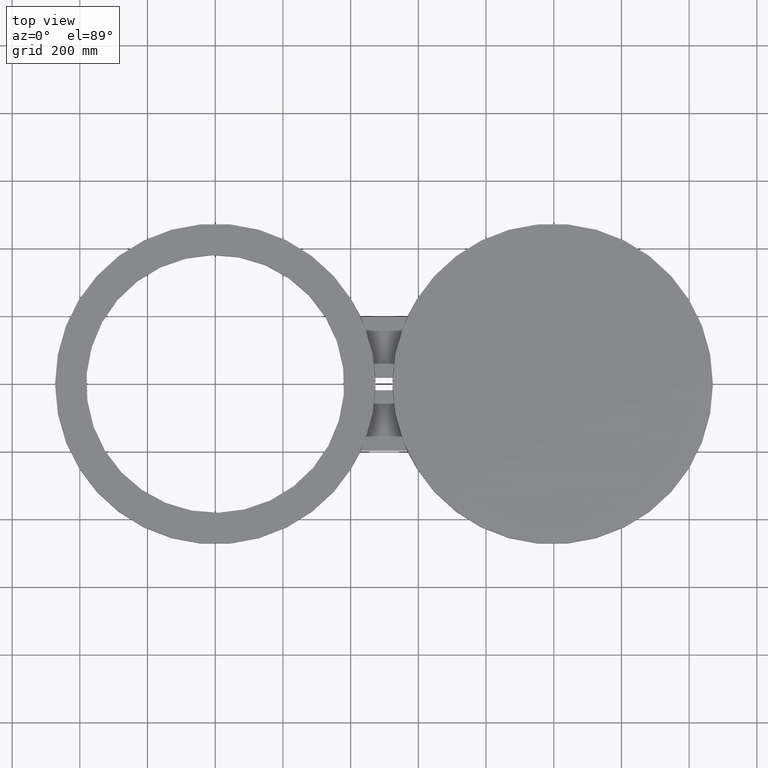
[diagram: clean part render]
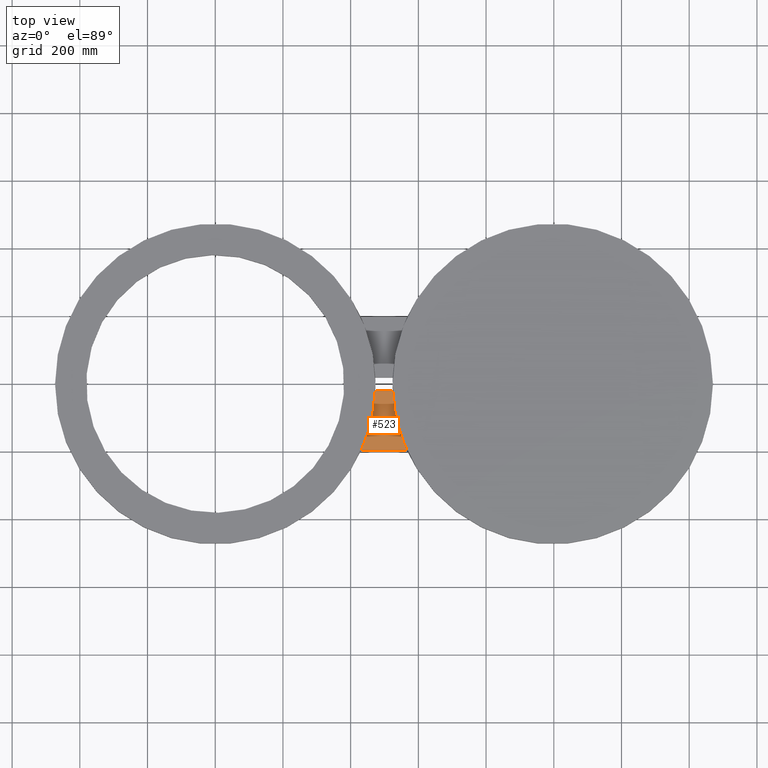
[diagram: same view with one face highlighted and labeled with its STEP entity id]
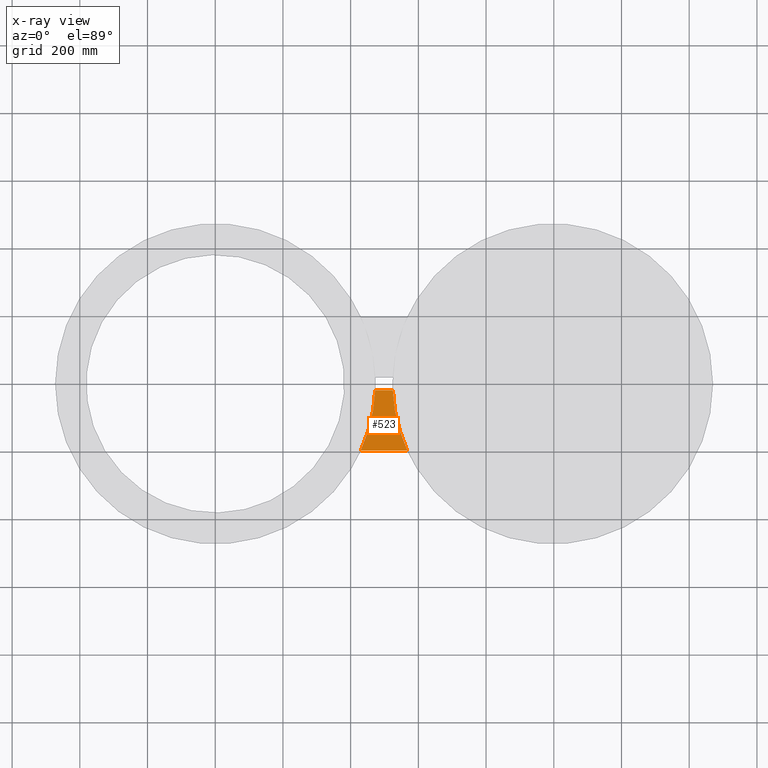
[diagram: x-ray of the same camera — body ghosted, the highlighted face saturated]
A machine part, top view. The second image highlights one B-rep face of the part: STEP entity #523.
The next image is the same camera in x-ray: the body ghosted, the highlighted face saturated — about 0% of this face is hidden behind the body in this view.
In plain terms, the highlighted planar face has unit normal (0, 0, 1).
Its self-contained STEP definition (entity closure, byte-faithful):
#76=AXIS2_PLACEMENT_3D('Circle Axis2P3D',#74,#75,$) ;
#173=AXIS2_PLACEMENT_3D('Circle Axis2P3D',#171,#172,$) ;
#340=AXIS2_PLACEMENT_3D('Plane Axis2P3D',#337,#338,#339) ;
#507=AXIS2_PLACEMENT_3D('Circle Axis2P3D',#505,#506,$) ;
#516=AXIS2_PLACEMENT_3D('Circle Axis2P3D',#514,#515,$) ;
#74=CARTESIAN_POINT('Axis2P3D Location',(39.2500000002,4.80673868667E-015,0.984375000004)) ;
#78=CARTESIAN_POINT('Vertex',(20.6401067978,-0.750000000003,0.984375000004)) ;
#80=CARTESIAN_POINT('Vertex',(22.3139991439,-7.75000000003,0.984375000004)) ;
#154=CARTESIAN_POINT('Vertex',(18.6098932023,-0.750000000003,0.984375000004)) ;
#168=CARTESIAN_POINT('Vertex',(16.9360008562,-7.75000000003,0.984375000004)) ;
#171=CARTESIAN_POINT('Axis2P3D Location',(0.,0.,0.984375000004)) ;
#337=CARTESIAN_POINT('Axis2P3D Location',(0.,0.,0.984375000004)) ;
#458=CARTESIAN_POINT('Line Origine',(19.6250000001,-7.75000000003,0.984375000004)) ;
#487=CARTESIAN_POINT('Line Origine',(19.6250000001,-0.750000000003,0.984375000004)) ;
#505=CARTESIAN_POINT('Axis2P3D Location',(19.6250000001,-4.25000000002,0.984375000004)) ;
#509=CARTESIAN_POINT('Vertex',(19.6250000001,-3.93750000314,0.984375000004)) ;
#511=CARTESIAN_POINT('Vertex',(19.6250000001,-4.56249999689,0.984375000004)) ;
#514=CARTESIAN_POINT('Axis2P3D Location',(19.6250000001,-4.25000000002,0.984375000004)) ;
#75=DIRECTION('Axis2P3D Direction',(0.,0.,0.0393700787402)) ;
#172=DIRECTION('Axis2P3D Direction',(0.,0.,0.0393700787402)) ;
#338=DIRECTION('Axis2P3D Direction',(0.,0.,0.0393700787402)) ;
#339=DIRECTION('Axis2P3D XDirection',(0.0393700787402,0.,0.)) ;
#459=DIRECTION('Vector Direction',(-0.0393700787402,0.,0.)) ;
#488=DIRECTION('Vector Direction',(0.0393700787402,0.,0.)) ;
#506=DIRECTION('Axis2P3D Direction',(0.,0.,0.0393700787402)) ;
#515=DIRECTION('Axis2P3D Direction',(0.,0.,0.0393700787402)) ;
#460=VECTOR('Line Direction',#459,0.0393700787402) ;
#489=VECTOR('Line Direction',#488,0.0393700787402) ;
#500=ORIENTED_EDGE('',*,*,#82,.F.) ;
#501=ORIENTED_EDGE('',*,*,#491,.T.) ;
#502=ORIENTED_EDGE('',*,*,#175,.F.) ;
#503=ORIENTED_EDGE('',*,*,#462,.T.) ;
#520=ORIENTED_EDGE('',*,*,#513,.F.) ;
#521=ORIENTED_EDGE('',*,*,#518,.F.) ;
#522=FACE_BOUND('',#519,.T.) ;
#523=ADVANCED_FACE('PartBody',(#504,#522),#341,.T.) ;
#77=CIRCLE('generated circle',#76,18.6250000001) ;
#174=CIRCLE('generated circle',#173,18.6250000001) ;
#508=CIRCLE('generated circle',#507,0.312499996876) ;
#517=CIRCLE('generated circle',#516,0.312499996876) ;
#82=EDGE_CURVE('',#79,#81,#77,.T.) ;
#175=EDGE_CURVE('',#169,#155,#174,.T.) ;
#462=EDGE_CURVE('',#169,#81,#461,.F.) ;
#491=EDGE_CURVE('',#79,#155,#490,.F.) ;
#513=EDGE_CURVE('',#510,#512,#508,.T.) ;
#518=EDGE_CURVE('',#512,#510,#517,.T.) ;
#499=EDGE_LOOP('',(#500,#501,#502,#503)) ;
#519=EDGE_LOOP('',(#520,#521)) ;
#504=FACE_OUTER_BOUND('',#499,.T.) ;
#461=LINE('Line',#458,#460) ;
#490=LINE('Line',#487,#489) ;
#341=PLANE('',#340) ;
#79=VERTEX_POINT('',#78) ;
#81=VERTEX_POINT('',#80) ;
#155=VERTEX_POINT('',#154) ;
#169=VERTEX_POINT('',#168) ;
#510=VERTEX_POINT('',#509) ;
#512=VERTEX_POINT('',#511) ;